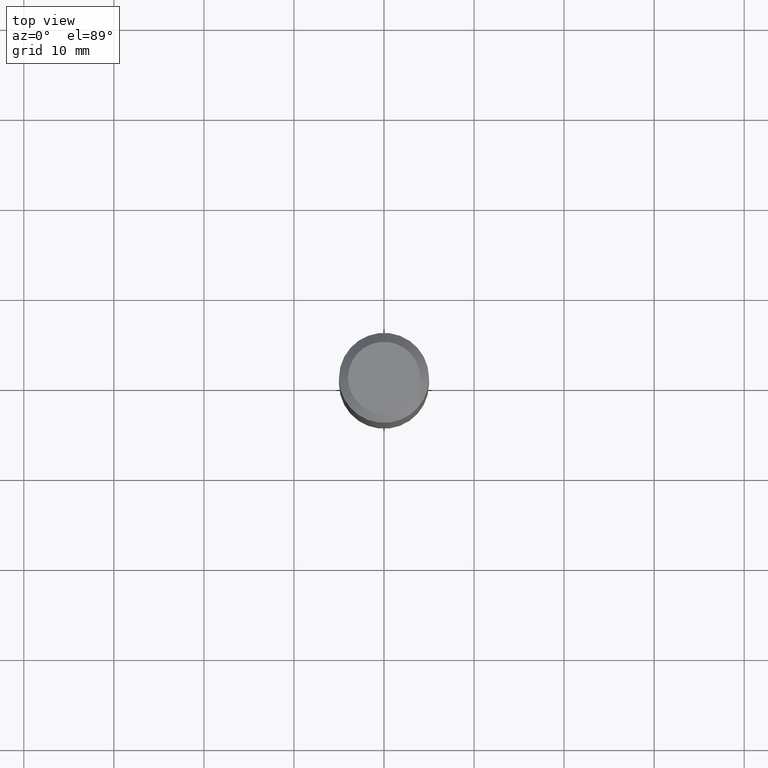
[diagram: clean part render]
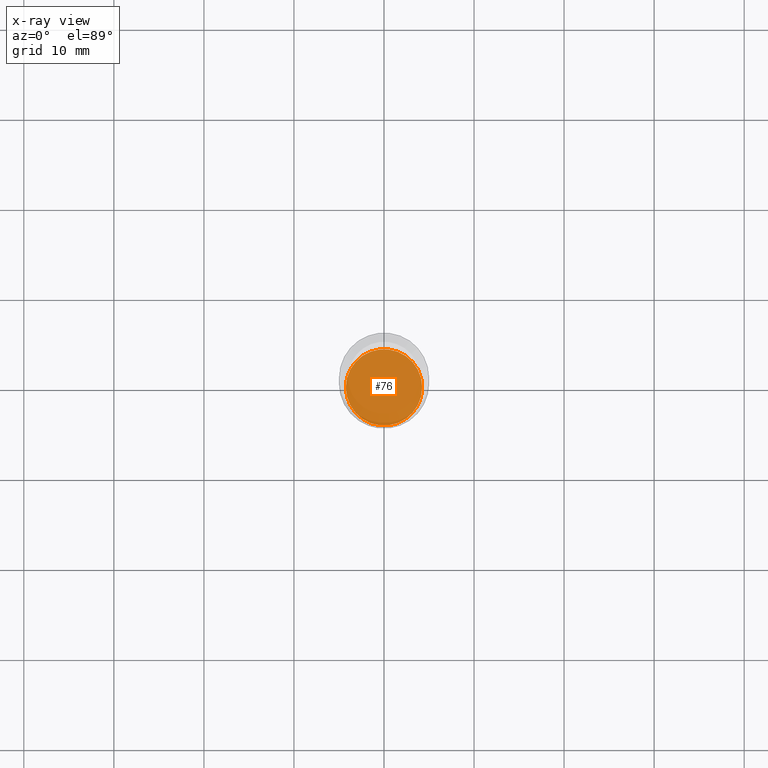
[diagram: x-ray — body ghosted, one internal face saturated and labeled with its STEP entity id]
A machine part, top view, then the same camera in x-ray: the body is ghosted and one INTERNAL B-rep face — a face not visible from any outside direction — is saturated and labeled: STEP entity #76.
In plain terms, the highlighted planar face has unit normal (-0, 0, 1).
Its self-contained STEP definition (entity closure, byte-faithful):
#5 = PLANE ( 'NONE',  #134 ) ;
#50 = VERTEX_POINT ( 'NONE', #357 ) ;
#61 = DIRECTION ( 'NONE',  ( 1.000000000000000000, -6.982962677686272233E-15, 0.000000000000000000 ) ) ;
#68 = EDGE_LOOP ( 'NONE', ( #434, #71 ) ) ;
#71 = ORIENTED_EDGE ( 'NONE', *, *, #310, .F. ) ;
#73 = DIRECTION ( 'NONE',  ( -2.438088387897960049E-29, 3.491481338843145188E-15, 1.000000000000000000 ) ) ;
#74 = AXIS2_PLACEMENT_3D ( 'NONE', #138, #236, #61 ) ;
#76 = ADVANCED_FACE ( 'NONE', ( #158 ), #5, .F. ) ;
#89 = AXIS2_PLACEMENT_3D ( 'NONE', #400, #359, #329 ) ;
#106 = EDGE_CURVE ( 'NONE', #232, #50, #454, .T. ) ;
#134 = AXIS2_PLACEMENT_3D ( 'NONE', #319, #73, #474 ) ;
#138 = CARTESIAN_POINT ( 'NONE',  ( 5.987974918824925266E-29, -8.549241206291326487E-15, -2.448600000000000332 ) ) ;
#158 = FACE_OUTER_BOUND ( 'NONE', #68, .T. ) ;
#232 = VERTEX_POINT ( 'NONE', #256 ) ;
#236 = DIRECTION ( 'NONE',  ( -2.445468806185136597E-29, 3.491481338843145583E-15, 1.000000000000000000 ) ) ;
#256 = CARTESIAN_POINT ( 'NONE',  ( 0.1668000000000000038, -9.713999380929397844E-15, -2.448600000000000332 ) ) ;
#310 = EDGE_CURVE ( 'NONE', #50, #232, #390, .T. ) ;
#319 = CARTESIAN_POINT ( 'NONE',  ( 5.987974918824925266E-29, -8.549241206291326487E-15, -2.448600000000000332 ) ) ;
#329 = DIRECTION ( 'NONE',  ( 1.000000000000000000, -6.982962677686272233E-15, 0.000000000000000000 ) ) ;
#357 = CARTESIAN_POINT ( 'NONE',  ( -0.1668000000000000038, -7.361406695869368543E-15, -2.448600000000000332 ) ) ;
#359 = DIRECTION ( 'NONE',  ( -2.445468806185136597E-29, 3.491481338843145583E-15, 1.000000000000000000 ) ) ;
#390 = CIRCLE ( 'NONE', #74, 0.1668000000000000038 ) ;
#400 = CARTESIAN_POINT ( 'NONE',  ( 5.987974918824925266E-29, -8.549241206291326487E-15, -2.448600000000000332 ) ) ;
#434 = ORIENTED_EDGE ( 'NONE', *, *, #106, .F. ) ;
#454 = CIRCLE ( 'NONE', #89, 0.1668000000000000038 ) ;
#474 = DIRECTION ( 'NONE',  ( 1.000000000000000000, -6.982962677686265922E-15, 4.876176775795935793E-29 ) ) ;